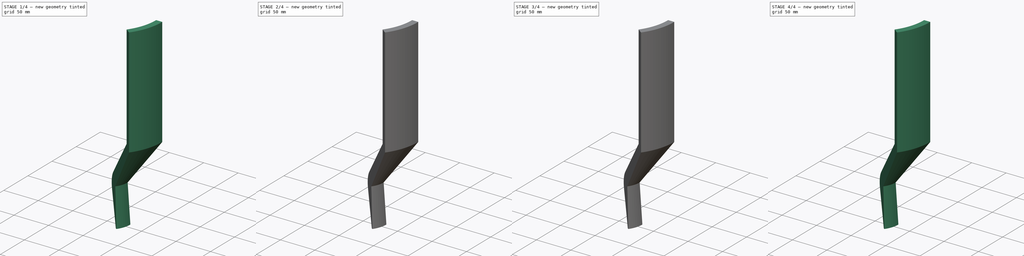
[diagram: build sequence overview — one tinted view per stage of 4, left to right]
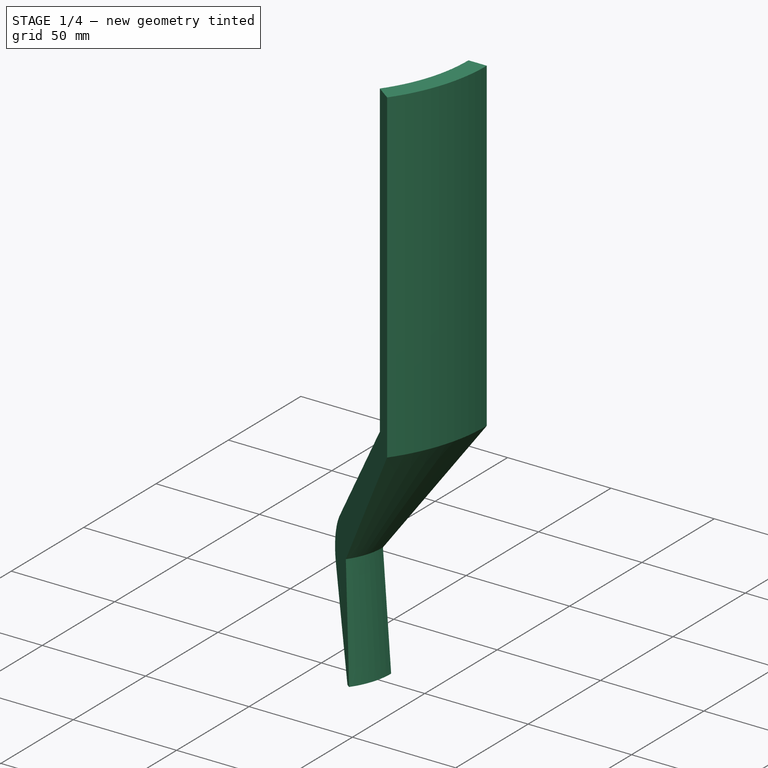
[diagram: stage 1 of 4 — iso view after this stage's code; geometry added in this stage tinted green]
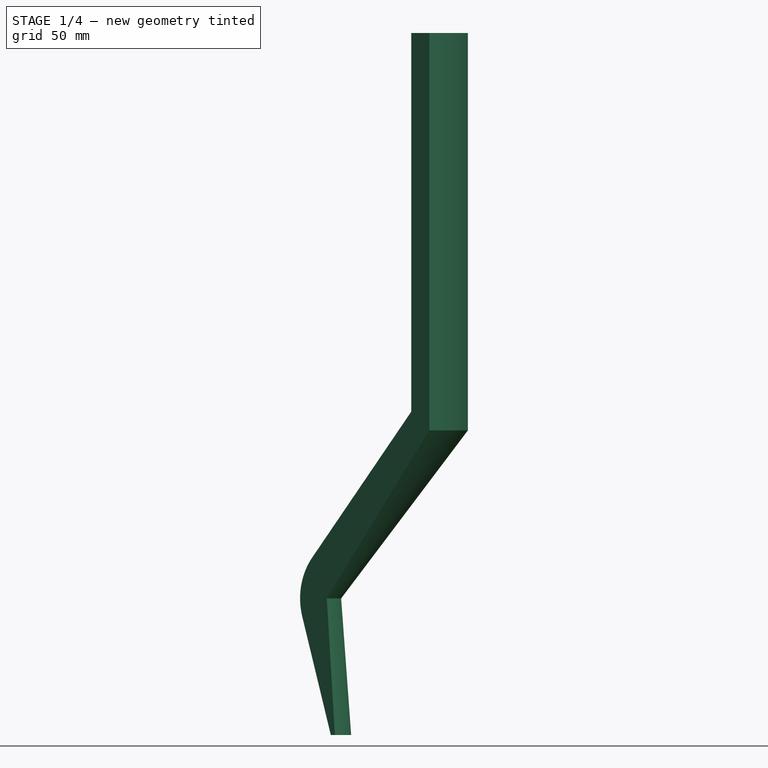
[diagram: stage 1 of 4 — front view after this stage's code; geometry added in this stage tinted green]
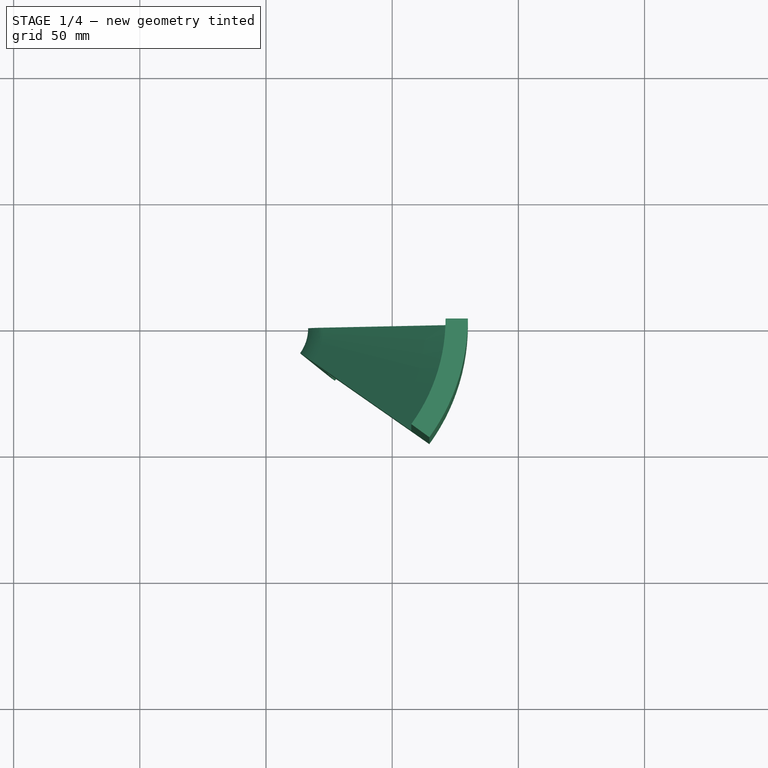
[diagram: stage 1 of 4 — top view after this stage's code; geometry added in this stage tinted green]
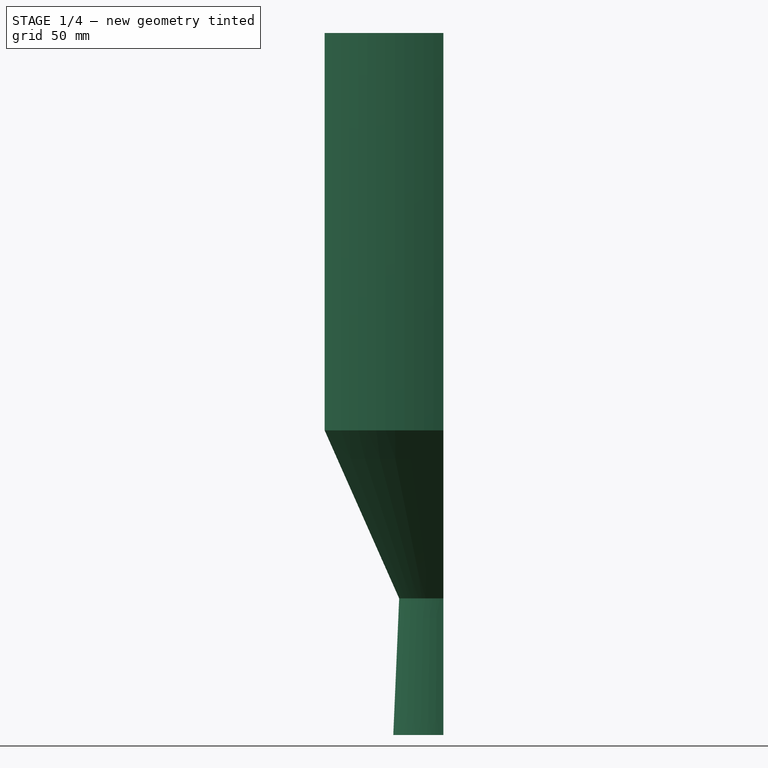
[diagram: stage 1 of 4 — right view after this stage's code; geometry added in this stage tinted green]
FCSTD DOCUMENT  (FreeCAD 1.0R39109 (Git))
Label: mlaznicaV3-CFD
License: All rights reserved
LicenseURL: https://en.wikipedia.org/wiki/All_rights_reserved
objects: Sketcher::SketchObject×9, Part::FeaturePython×9, PartDesign::Groove×6, PartDesign::Plane×4, PartDesign::Revolution×3, PartDesign::Body×3, Spreadsheet::Sheet×1, PartDesign::Boolean×1
note: 63 computed .brp shape members not serialized (recipe doc carries the construction recipe); baked Part::Feature solids carry a one-line shape summary decoded from their .brp

FEATURE [PartDesign::Body] Body  label="volume-solid"
  AllowCompound = false
  Group = -> [Sketch,Revolution,DatumPlane,Sketch001,Groove,DatumPlane001,Sketch002,Groove001,Sketch004,Groove002]
  Origin = -> Origin
  Tip = -> Groove002
FEATURE [PartDesign::Plane] DatumPlane002
  AttachmentOffset = pos=(0,0,0) rot=(0,-1,0;0.055866rad)
  AttachmentSupport = -> [XZ_Plane001]
  Length = 62.9816
  MapMode = 5
  Placement = pos=(0,0,0) rot=(0.99922,-0.027918,-0.027918;1.57158rad)
  ResizeMode = 0
  Width = 60.2678
  expr: .AttachmentOffset.Rotation.Pitch = -Spreadsheet.C15 / 2
FEATURE [PartDesign::Plane] DatumPlane003
  AttachmentOffset = pos=(0,0,0) rot=(0,-1,0;0.370025rad)
  AttachmentSupport = -> [XZ_Plane001]
  Length = 76.0731
  MapMode = 5
  Placement = pos=(0,0,0) rot=(0.966713,-0.180923,-0.180923;1.60464rad)
  ResizeMode = 0
  Width = 61.3752
  expr: .AttachmentOffset.Rotation.Pitch = -(Spreadsheet.C15 / 2 + Spreadsheet.C15 + Spreadsheet.C16)
FEATURE [Sketcher::SketchObject] Sketch005
  ArcFitTolerance = 1e-06
  AttachmentSupport = -> [XZ_Plane001]
  FullyConstrained = true
  MakeInternals = false
  MapMode = 5
  Placement = pos=(0,0,0) rot=(1,0,0;1.5708rad)
  expr: Constraints[18] = Spreadsheet.vanjski_promjer
  expr: Constraints[1] = Spreadsheet.promjer_grla_mlaznice
  expr: Constraints[22] = Spreadsheet.vanjski_promjer_grlo
  expr: Constraints[6] = Spreadsheet.unutarnji_promjer_komora
  sketch-geometry (10):
    g0: ArcOfCircle CenterX=41.7 CenterY=54.12 CenterZ=0 NormalX=0 NormalY=0 NormalZ=1 AngleXU=0 Radius=25 StartAngle=2.44346 EndAngle=3.43132
    g1: LineSegment StartX=17.7419 StartY=46.9778 StartZ=0 EndX=31.7466 EndY=0 EndZ=0
    g2: LineSegment StartX=22.5489 StartY=70.1897 StartZ=0 EndX=71.1527 EndY=128.114 EndZ=0
    g3: LineSegment StartX=71.1527 StartY=128.114 StartZ=0 EndX=71.1527 EndY=278.114 EndZ=0
    g4: LineSegment StartX=71.1527 StartY=278.114 StartZ=0 EndX=80 EndY=278.114 EndZ=0
    g5: LineSegment StartX=80 StartY=278.114 StartZ=0 EndX=80 EndY=120.69 EndZ=0
    g6: LineSegment [constr] StartX=71.1527 StartY=128.114 StartZ=0 EndX=80 EndY=120.69 EndZ=0
    g7: LineSegment StartX=80 StartY=120.69 StartZ=0 EndX=29.7795 EndY=54.12 EndZ=0
    g8: LineSegment StartX=29.7795 StartY=54.12 StartZ=0 EndX=33.7466 EndY=0 EndZ=0
    g9: LineSegment StartX=33.7466 StartY=0 StartZ=0 EndX=31.7466 EndY=0 EndZ=0
  constraints (28):
    c: Diameter(g0) = 50
    c: Distance(g0,g-2) = 16.7
    c: Distance(g0,g-1) = 54.12
    c: Angle(g-2,g1) = 0.289725
    c: PointOnObject(g1,g-1)
    c: Angle(g2,g-2) = 0.698132
    c: DistanceX(g-1,g2) = 71.1527
    c: Tangent(g0,g1) = -1.5708
    c: Tangent(g0,g2) = 1.5708
    c: Coincident(g3,g2)
    c: Vertical(g3)
    c: Coincident(g4,g3)
    c: Horizontal(g4)
    c: Coincident(g5,g4)
    c: Vertical(g5)
    c: DistanceY(g3,g3) = 150
    c: Coincident(g6,g2)
    c: Perpendicular(g6,g2)
    c: Distance(g-2,g5) = 80
    c: Coincident(g5,g6)
    c: Coincident(g7,g5)
    c: Distance(g7,g-1) = 54.12
    c: DistanceX(g-1,g7) = 29.7795
    c: Coincident(g8,g7)
    c: PointOnObject(g8,g-1)
    c: Coincident(g9,g8)
    c: Coincident(g9,g1)
    c: DistanceX(g9,g9) = 2
FEATURE [PartDesign::Revolution] Revolution001
  Angle = 36
  Angle2 = 60
  Axis = (0,2e-16,1)
  Base = (0,0,0)
  Placement = pos=(0,0,0) rot=(1,0,0;1.5708rad)
  Profile = -> Sketch005
  ReferenceAxis = -> Sketch005 [V_Axis]
  Refine = true
  Reversed = true
  Suppressed = false
  Type = 0
  expr: Angle = Spreadsheet.deg_grlo
FEATURE [PartDesign::Body] Body001
  AllowCompound = false
  Group = -> [Sketch005,Revolution001,DatumPlane002,Sketch006,Groove003,DatumPlane003,Sketch007,Groove004,Sketch008,Groove005]
  Origin = -> Origin001
  Tip = -> Groove005
FEATURE [Sketcher::SketchObject] Sketch009
  ArcFitTolerance = 1e-06
  AttachmentSupport = -> [XZ_Plane002]
  FullyConstrained = true
  MakeInternals = false
  MapMode = 5
  Placement = pos=(0,0,0) rot=(1,0,0;1.5708rad)
  expr: Constraints[18] = Spreadsheet.vanjski_promjer
  expr: Constraints[1] = Spreadsheet.promjer_grla_mlaznice
  expr: Constraints[22] = Spreadsheet.vanjski_promjer_grlo
  expr: Constraints[6] = Spreadsheet.unutarnji_promjer_komora
  sketch-geometry (10):
    g0: ArcOfCircle CenterX=41.7 CenterY=54.12 CenterZ=0 NormalX=0 NormalY=0 NormalZ=1 AngleXU=0 Radius=25 StartAngle=2.44346 EndAngle=3.43132
    g1: LineSegment StartX=17.7419 StartY=46.9778 StartZ=0 EndX=31.7466 EndY=0 EndZ=0
    g2: LineSegment StartX=22.5489 StartY=70.1897 StartZ=0 EndX=71.1527 EndY=128.114 EndZ=0
    g3: LineSegment StartX=71.1527 StartY=128.114 StartZ=0 EndX=71.1527 EndY=278.114 EndZ=0
    g4: LineSegment StartX=71.1527 StartY=278.114 StartZ=0 EndX=80 EndY=278.114 EndZ=0
    g5: LineSegment StartX=80 StartY=278.114 StartZ=0 EndX=80 EndY=120.69 EndZ=0
    g6: LineSegment [constr] StartX=71.1527 StartY=128.114 StartZ=0 EndX=80 EndY=120.69 EndZ=0
    g7: LineSegment StartX=80 StartY=120.69 StartZ=0 EndX=29.7795 EndY=54.12 EndZ=0
    g8: LineSegment StartX=29.7795 StartY=54.12 StartZ=0 EndX=33.7466 EndY=0 EndZ=0
    g9: LineSegment StartX=33.7466 StartY=0 StartZ=0 EndX=31.7466 EndY=0 EndZ=0
  constraints (28):
    c: Diameter(g0) = 50
    c: Distance(g0,g-2) = 16.7
    c: Distance(g0,g-1) = 54.12
    c: Angle(g-2,g1) = 0.289725
    c: PointOnObject(g1,g-1)
    c: Angle(g2,g-2) = 0.698132
    c: DistanceX(g-1,g2) = 71.1527
    c: Tangent(g0,g1) = -1.5708
    c: Tangent(g0,g2) = 1.5708
    c: Coincident(g3,g2)
    c: Vertical(g3)
    c: Coincident(g4,g3)
    c: Horizontal(g4)
    c: Coincident(g5,g4)
    c: Vertical(g5)
    c: DistanceY(g3,g3) = 150
    c: Coincident(g6,g2)
    c: Perpendicular(g6,g2)
    c: Distance(g-2,g5) = 80
    c: Coincident(g5,g6)
    c: Coincident(g7,g5)
    c: Distance(g7,g-1) = 54.12
    c: DistanceX(g-1,g7) = 29.7795
    c: Coincident(g8,g7)
    c: PointOnObject(g8,g-1)
    c: Coincident(g9,g8)
    c: Coincident(g9,g1)
    c: DistanceX(g9,g9) = 2
FEATURE [PartDesign::Revolution] Revolution002
  Angle = 36
  Angle2 = 60
  Axis = (0,2e-16,1)
  Base = (0,0,0)
  Placement = pos=(0,0,0) rot=(1,0,0;1.5708rad)
  Profile = -> Sketch009
  ReferenceAxis = -> Sketch009 [V_Axis]
  Refine = true
  Reversed = true
  Suppressed = false
  Type = 0
  expr: Angle = Spreadsheet.deg_grlo
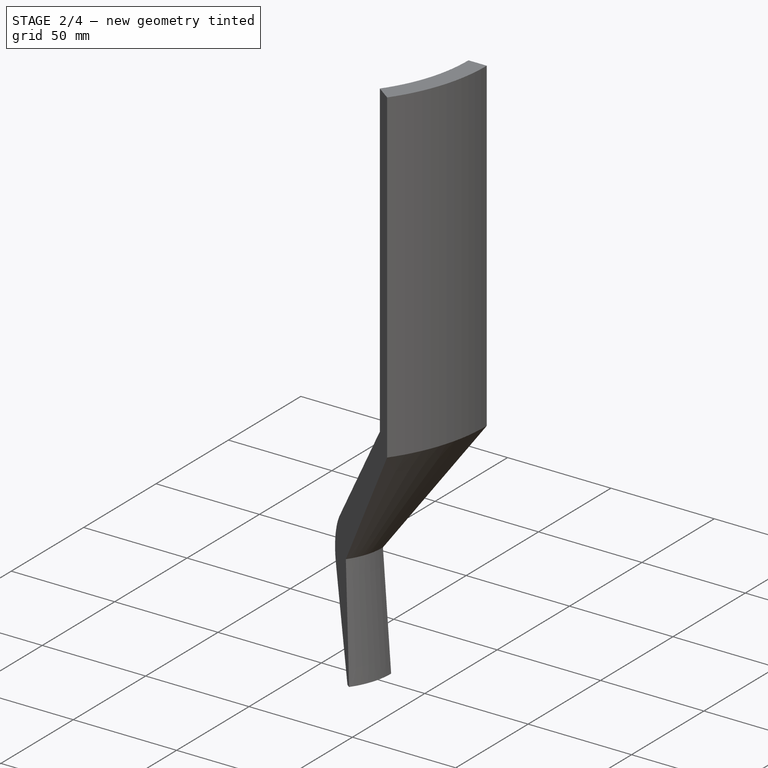
[diagram: stage 2 of 4 — iso view after this stage's code; geometry added in this stage tinted green]
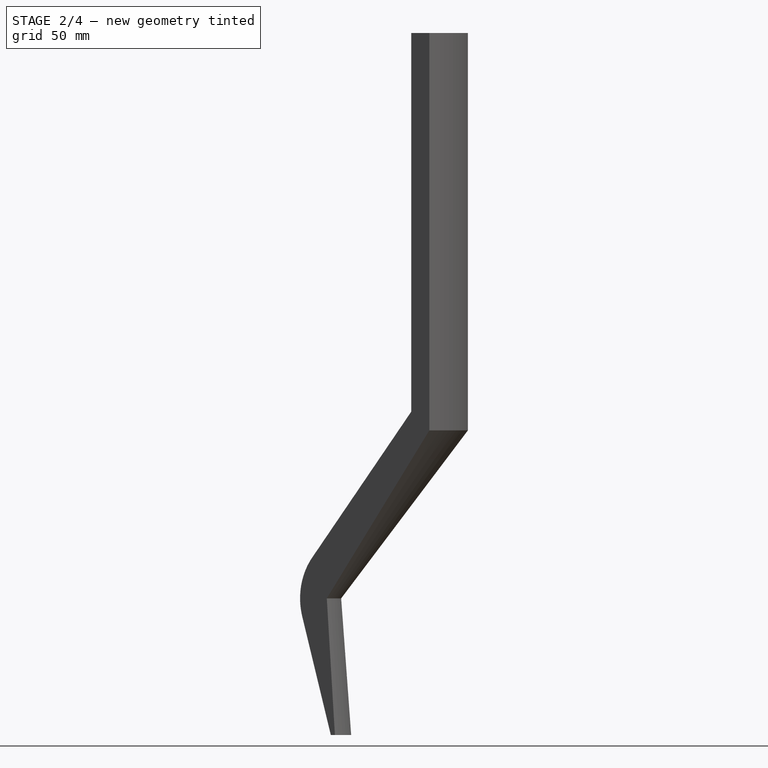
[diagram: stage 2 of 4 — front view after this stage's code; geometry added in this stage tinted green]
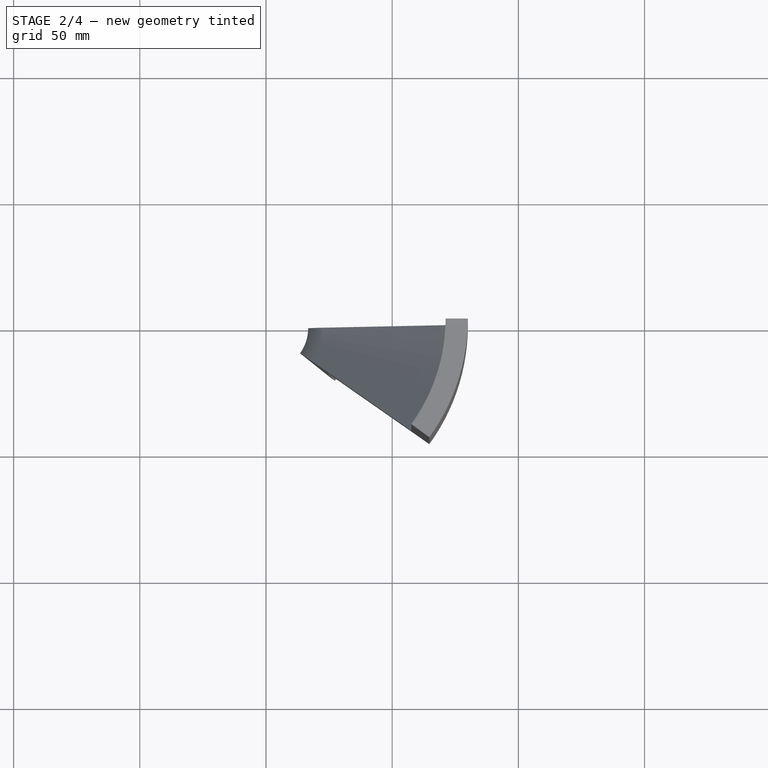
[diagram: stage 2 of 4 — top view after this stage's code; geometry added in this stage tinted green]
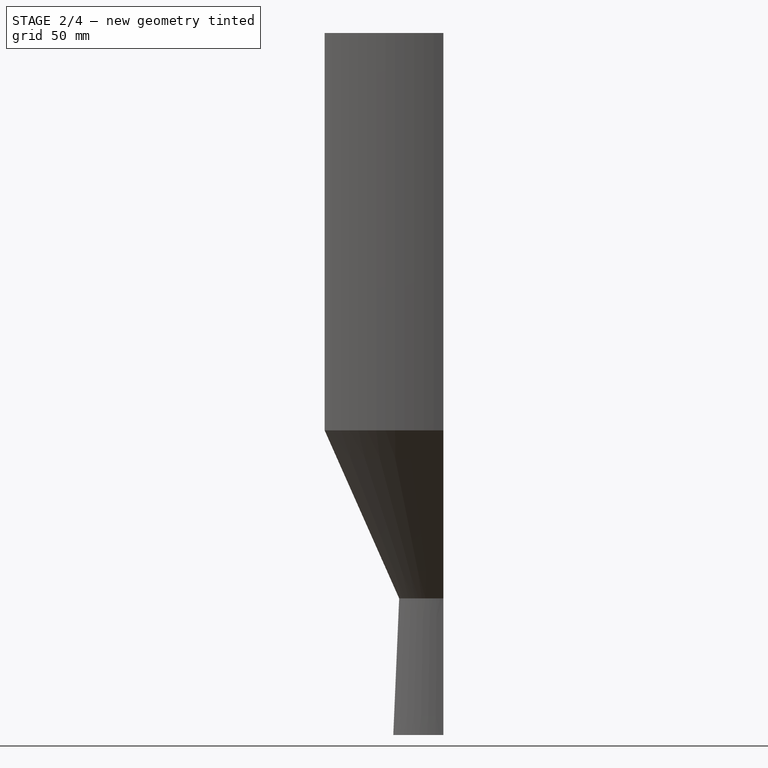
[diagram: stage 2 of 4 — right view after this stage's code; geometry added in this stage tinted green]
FEATURE [Sketcher::SketchObject] Sketch006
  ArcFitTolerance = 1e-06
  AttachmentSupport = -> [DatumPlane002]
  FullyConstrained = false
  MakeInternals = false
  MapMode = 5
  Placement = pos=(0,0,0) rot=(0.99922,-0.027918,-0.027918;1.57158rad)
  expr: Constraints[16] = Spreadsheet.C11
  expr: Constraints[21] = Spreadsheet.C10
  expr: Constraints[24] = Spreadsheet.unutarnji_promjer_komora
  expr: Constraints[7] = Spreadsheet.C4
  expr: Constraints[8] = Spreadsheet.C3
  expr: Constraints[9] = 50 - 2 * (Spreadsheet.C10 - Spreadsheet.C9)
  sketch-geometry (11):
    g0: LineSegment StartX=76.3 StartY=333 StartZ=0 EndX=76.3 EndY=123.181 EndZ=0
    g1: LineSegment StartX=76.3 StartY=333 StartZ=0 EndX=73.0527 EndY=333 EndZ=0
    g2: LineSegment StartX=73.0527 StartY=333 StartZ=0 EndX=73.0527 EndY=126.026 EndZ=0
    g3: ArcOfCircle CenterX=41.7 CenterY=54.12 CenterZ=0 NormalX=0 NormalY=0 NormalZ=1 AngleXU=0 Radius=23.8 StartAngle=2.42216 EndAngle=3.14159
    g4: LineSegment StartX=76.3 StartY=123.181 StartZ=0 EndX=28.3795 EndY=54.12 EndZ=0
    g5: LineSegment StartX=73.0527 StartY=126.026 StartZ=0 EndX=23.7981 EndY=69.8032 EndZ=0
    g6: LineSegment [constr] StartX=73.0527 StartY=126.026 StartZ=0 EndX=76.3 EndY=123.181 EndZ=0
    g7: LineSegment StartX=28.3795 StartY=54.12 StartZ=0 EndX=17.9 EndY=54.12 EndZ=0
    g8: LineSegment [constr] StartX=71.1527 StartY=277.62 StartZ=0 EndX=71.1527 EndY=127.62 EndZ=0
    g9: LineSegment [constr] StartX=71.1527 StartY=127.62 StartZ=0 EndX=47.4397 EndY=99.3599 EndZ=0
    g10: LineSegment [constr] StartX=71.1527 StartY=127.62 StartZ=0 EndX=80.0102 EndY=120.188 EndZ=0
  constraints (32):
    c: Vertical(g0)
    c: Coincident(g1,g0)
    c: Horizontal(g1)
    c: Coincident(g2,g1)
    c: Vertical(g2)
    c: Coincident(g4,g0)
    c: Coincident(g5,g2)
    c: Distance(g-2,g2) = 73.0527
    c: Distance(g-2,g0) = 76.3
    c: Diameter(g3) = 47.6
    c: Distance(g3,g-1) = 54.12
    c: DistanceY(g-1,g4) = 54.12
    c: Coincident(g6,g2)
    c: Perpendicular(g5,g6)
    c: PointOnObject(g0,g6)
    c: PointOnObject(g6,g4)
    c: DistanceX(g-1,g4) = 28.3795
    c: Coincident(g7,g4)
    c: Horizontal(g7)
    c: Tangent(g3,g5) = -1.5708
    c: Coincident(g3,g7)
    c: Distance(g3,g-2) = 17.9
    c: Vertical(g8)
    c: DistanceY(g-1,g8) = 277.62
    c: Distance(g-2,g8) = 71.1527
    c: DistanceY(g8,g8) = 150
    c: Coincident(g9,g8)
    c: Angle(g9,g-2) = 0.698132
    c: Coincident(g10,g8)
    c: Perpendicular(g9,g10)
    c: PointOnObject(g2,g10)
    c: Distance(g-1,g1) = 333
FEATURE [PartDesign::Groove] Groove003
  Angle = 11.5982
  Angle2 = 60
  Axis = (0,1e-16,1)
  Base = (0,0,0)
  BaseFeature = -> Revolution001
  Placement = pos=(0,0,0) rot=(1,0,0;1.5708rad)
  Profile = -> Sketch006
  ReferenceAxis = -> Sketch006 [V_Axis]
  Refine = true
  Reversed = true
  Suppressed = false
  Type = 0
  expr: Angle = Spreadsheet.C16
FEATURE [Sketcher::SketchObject] Sketch007
  ArcFitTolerance = 1e-06
  AttachmentSupport = -> [DatumPlane003]
  FullyConstrained = false
  MakeInternals = false
  MapMode = 5
  Placement = pos=(0,0,0) rot=(0.966713,-0.180923,-0.180923;1.60464rad)
  expr: Constraints[12] = 50 - 2 * (Spreadsheet.C10 - Spreadsheet.C9)
  expr: Constraints[13] = Spreadsheet.C11
  expr: Constraints[14] = Spreadsheet.C4
  expr: Constraints[15] = Spreadsheet.C3
  expr: Constraints[20] = Spreadsheet.C10
  expr: Constraints[22] = Spreadsheet.C5
  expr: Constraints[32] = Spreadsheet.C9
  sketch-geometry (14):
    g0: ArcOfCircle CenterX=41.7 CenterY=54.12 CenterZ=0 NormalX=0 NormalY=0 NormalZ=1 AngleXU=0 Radius=23.8 StartAngle=2.42216 EndAngle=3.14159
    g1: LineSegment StartX=23.7981 StartY=69.8032 StartZ=0 EndX=73.0527 EndY=126.026 EndZ=0
    g2: LineSegment StartX=73.0527 StartY=126.026 StartZ=0 EndX=73.0527 EndY=333 EndZ=0
    g3: LineSegment StartX=73.0527 StartY=333 StartZ=0 EndX=76.3 EndY=333 EndZ=0
    g4: LineSegment StartX=76.3 StartY=333 StartZ=0 EndX=76.3 EndY=123.181 EndZ=0
    g5: LineSegment StartX=76.3 StartY=123.181 StartZ=0 EndX=28.3795 EndY=54.12 EndZ=0
    g6: LineSegment [constr] StartX=73.0527 StartY=126.026 StartZ=0 EndX=76.3 EndY=123.181 EndZ=0
    g7: LineSegment StartX=28.3795 StartY=54.12 StartZ=0 EndX=17.9 EndY=54.12 EndZ=0
    g8: LineSegment [constr] StartX=71.1527 StartY=277.62 StartZ=0 EndX=71.1527 EndY=127.62 EndZ=0
    g9: LineSegment [constr] StartX=71.1527 StartY=127.62 StartZ=0 EndX=54.334 EndY=107.576 EndZ=0
    g10: LineSegment [constr] StartX=71.1527 StartY=127.62 StartZ=0 EndX=86.3761 EndY=114.846 EndZ=0
    g11: ArcOfCircle [constr] CenterX=41.7 CenterY=54.12 CenterZ=0 NormalX=0 NormalY=0 NormalZ=1 AngleXU=0 Radius=25 StartAngle=2.42216 EndAngle=8.39425
    g12: LineSegment [constr] StartX=23.7981 StartY=69.8032 StartZ=0 EndX=22.8955 EndY=70.594 EndZ=0
    g13: LineSegment [constr] StartX=17.9 StartY=54.12 StartZ=0 EndX=16.7 EndY=54.12 EndZ=0
  constraints (41):
    c: Coincident(g2,g1)
    c: Vertical(g2)
    c: Coincident(g3,g2)
    c: Horizontal(g3)
    c: Coincident(g4,g3)
    c: Vertical(g4)
    c: Coincident(g5,g4)
    c: Coincident(g6,g1)
    c: Perpendicular(g1,g6)
    c: Coincident(g6,g4)
    c: DistanceY(g-1,g0) = 54.12
    c: DistanceY(g-1,g5) = 54.12
    c: Diameter(g0) = 47.6
    c: DistanceX(g-1,g5) = 28.3795
    c: Distance(g-2,g2) = 73.0527
    c: Distance(g-2,g4) = 76.3
    c: Coincident(g7,g5)
    c: Horizontal(g7)
    c: Coincident(g0,g7)
    c: Tangent(g0,g1) = 1.5708
    c: Distance(g0,g-2) = 17.9
    c: Vertical(g8)
    c: Distance(g-2,g8) = 71.1527
    c: DistanceY(g-1,g8) = 277.62
    c: DistanceY(g8,g8) = 150
    c: Distance(g-1,g3) = 333
    c: Coincident(g9,g8)
    c: Angle(g9,g-2) = 0.698132
    c: Coincident(g10,g8)
    c: Perpendicular(g10,g9)
    c: PointOnObject(g1,g10)
    c: DistanceY(g-1,g11) = 54.12
    c: Distance(g11,g-2) = 16.7
    c: Diameter(g11) = 50
    c: Coincident(g12,g0)
    c: Perpendicular(g12,g1)
    c: PointOnObject(g11,g1)
    c: Coincident(g12,g11)
    c: Coincident(g13,g0)
    c: Horizontal(g13)
    c: PointOnObject(g13,g11)
FEATURE [PartDesign::Groove] Groove004
  Angle = 11.5982
  Angle2 = 60
  Axis = (0,2e-16,1)
  Base = (0,0,0)
  BaseFeature = -> Groove003
  Placement = pos=(0,0,0) rot=(1,0,0;1.5708rad)
  Profile = -> Sketch007
  ReferenceAxis = -> Sketch007 [V_Axis]
  Refine = true
  Reversed = true
  Suppressed = false
  Type = 0
  expr: Angle = Spreadsheet.C17
FEATURE [Sketcher::SketchObject] Sketch008
  ArcFitTolerance = 1e-06
  AttachmentSupport = -> [DatumPlane003]
  FullyConstrained = false
  MakeInternals = false
  MapMode = 5
  Placement = pos=(0,0,0) rot=(0.966713,-0.180923,-0.180923;1.60464rad)
  expr: Constraints[0] = 50 - 2 * (Spreadsheet.C10 - Spreadsheet.C9)
  expr: Constraints[12] = Spreadsheet.C3
  expr: Constraints[13] = Spreadsheet.C10
  expr: Constraints[21] = Spreadsheet.C3
  expr: Constraints[22] = Spreadsheet.C4
  expr: Constraints[28] = Spreadsheet.C19
  expr: Constraints[3] = Spreadsheet.C11
  expr: Constraints[9] = Spreadsheet.C5
  sketch-geometry (9):
    g0: ArcOfCircle CenterX=41.7 CenterY=54.12 CenterZ=0 NormalX=0 NormalY=0 NormalZ=1 AngleXU=0 Radius=23.8 StartAngle=2.99344 EndAngle=3.14159
    g1: LineSegment StartX=28.3795 StartY=54.12 StartZ=0 EndX=30.813 EndY=57.6331 EndZ=0
    g2: LineSegment [constr] StartX=71.1527 StartY=277.62 StartZ=0 EndX=71.1527 EndY=127.62 EndZ=0
    g3: LineSegment [constr] StartX=71.1527 StartY=127.62 StartZ=0 EndX=52.814 EndY=105.765 EndZ=0
    g4: LineSegment [constr] StartX=71.1527 StartY=127.62 StartZ=0 EndX=76.3 EndY=123.301 EndZ=0
    g5: LineSegment StartX=28.3795 StartY=54.12 StartZ=0 EndX=17.9 EndY=54.12 EndZ=0
    g6: LineSegment [constr] StartX=14.9869 StartY=59.7455 StartZ=0 EndX=73.0527 EndY=126.026 EndZ=0
    g7: LineSegment [constr] StartX=76.3 StartY=123.301 StartZ=0 EndX=28.3795 EndY=54.12 EndZ=0
    g8: LineSegment StartX=18.1607 StartY=57.6331 StartZ=0 EndX=30.813 EndY=57.6331 EndZ=0
  constraints (29):
    c: Diameter(g0) = 47.6
    c: DistanceY(g-1,g0) = 54.12
    c: DistanceY(g-1,g1) = 54.12
    c: Distance(g1,g-2) = 28.3795
    c: Vertical(g2)
    c: Coincident(g3,g2)
    c: DistanceY(g-1,g2) = 277.62
    c: DistanceY(g2,g2) = 150
    c: Angle(g3,g-2) = 0.698132
    c: Distance(g-2,g2) = 71.1527
    c: Coincident(g4,g2)
    c: Perpendicular(g3,g4)
    c: Distance(g4,g-2) = 76.3
    c: Distance(g0,g-2) = 17.9
    c: Coincident(g5,g1)
    c: Coincident(g5,g0)
    c: Horizontal(g5)
    c: Distance(g3,g3) = 28.53
    c: PointOnObject(g6,g4)
    c: PointOnObject(g7,g4)
    c: Coincident(g7,g1)
    c: DistanceX(g-1,g7) = 76.3
    c: DistanceX(g-1,g6) = 73.0527
    c: Tangent(g0,g6)
    c: Parallel(g7,g1)
    c: Horizontal(g8)
    c: Coincident(g8,g1)
    c: Coincident(g8,g0)
    c: Distance(g5,g8) = 3.51309
FEATURE [PartDesign::Groove] Groove005
  Angle = 6.40176
  Angle2 = 60
  Axis = (0,2e-16,1)
  Base = (0,0,0)
  BaseFeature = -> Groove004
  Placement = pos=(0,0,0) rot=(1,0,0;1.5708rad)
  Profile = -> Sketch008
  ReferenceAxis = -> Sketch008 [V_Axis]
  Refine = true
  Suppressed = false
  Type = 0
  expr: Angle = Spreadsheet.C15
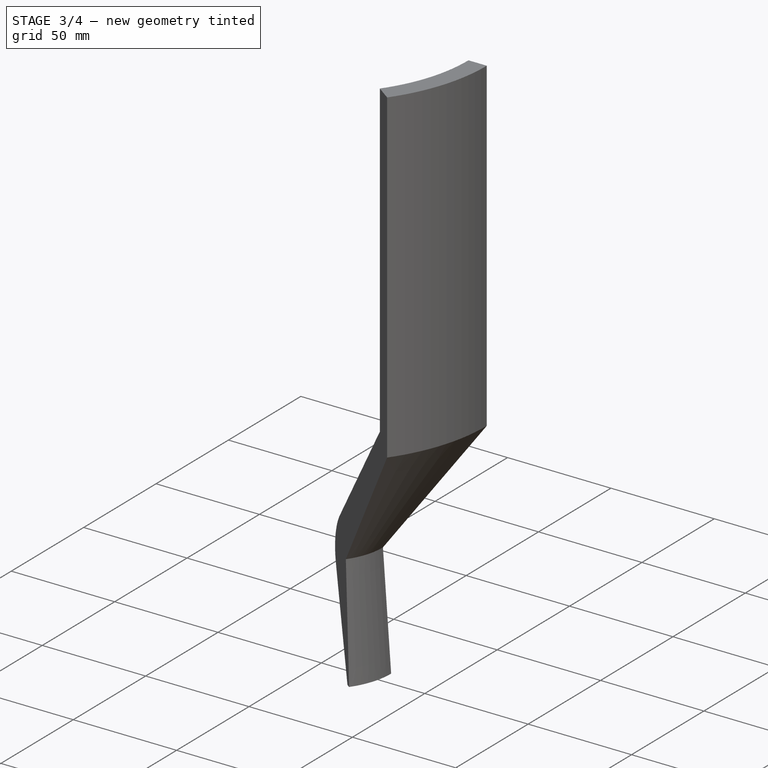
[diagram: stage 3 of 4 — iso view after this stage's code; geometry added in this stage tinted green]
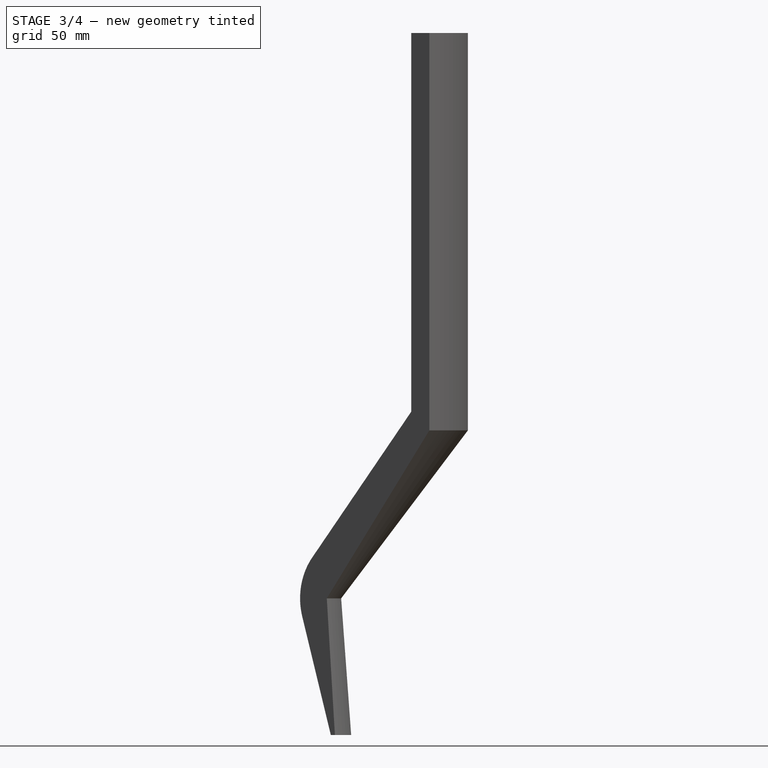
[diagram: stage 3 of 4 — front view after this stage's code; geometry added in this stage tinted green]
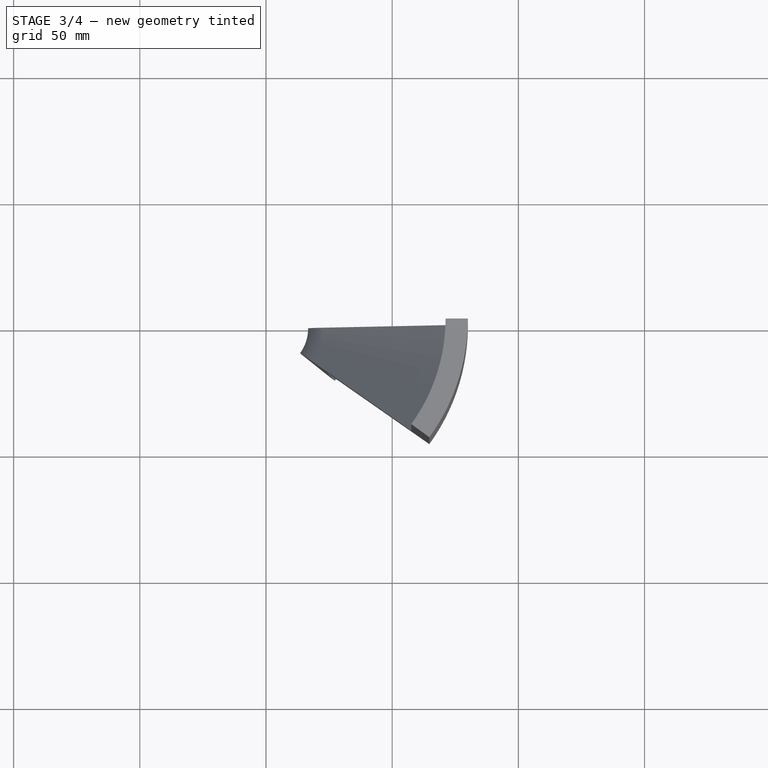
[diagram: stage 3 of 4 — top view after this stage's code; geometry added in this stage tinted green]
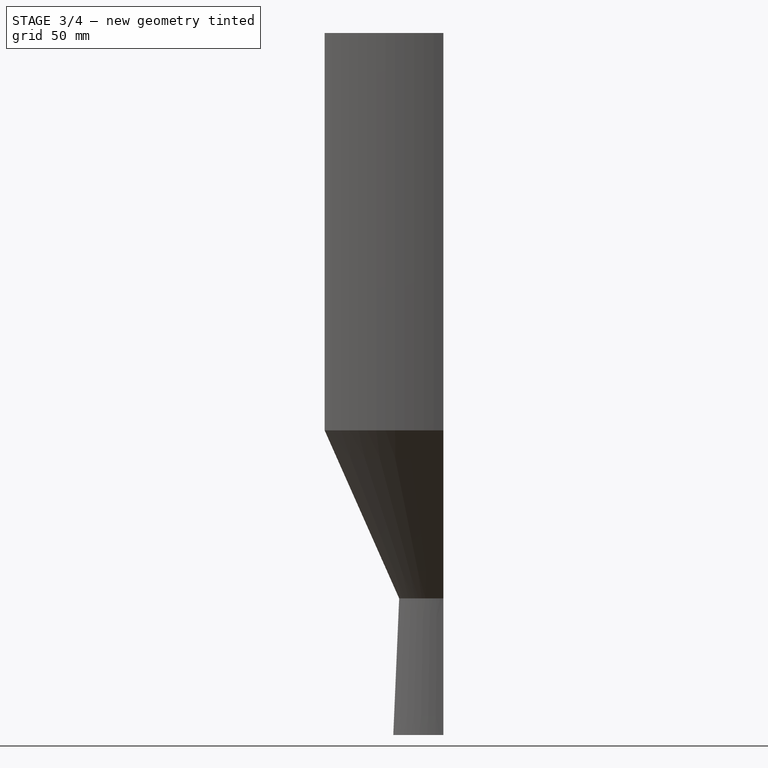
[diagram: stage 3 of 4 — right view after this stage's code; geometry added in this stage tinted green]
FEATURE [Sketcher::SketchObject] Sketch
  ArcFitTolerance = 1e-06
  AttachmentSupport = -> [XZ_Plane]
  FullyConstrained = true
  MakeInternals = false
  MapMode = 5
  Placement = pos=(0,0,0) rot=(1,0,0;1.5708rad)
  expr: Constraints[18] = Spreadsheet.vanjski_promjer
  expr: Constraints[1] = Spreadsheet.promjer_grla_mlaznice
  expr: Constraints[22] = Spreadsheet.vanjski_promjer_grlo
  expr: Constraints[6] = Spreadsheet.unutarnji_promjer_komora
  sketch-geometry (10):
    g0: ArcOfCircle CenterX=41.7 CenterY=54.12 CenterZ=0 NormalX=0 NormalY=0 NormalZ=1 AngleXU=0 Radius=25 StartAngle=2.44346 EndAngle=3.43132
    g1: LineSegment StartX=17.7419 StartY=46.9778 StartZ=0 EndX=31.7466 EndY=0 EndZ=0
    g2: LineSegment StartX=22.5489 StartY=70.1897 StartZ=0 EndX=71.1527 EndY=128.114 EndZ=0
    g3: LineSegment StartX=71.1527 StartY=128.114 StartZ=0 EndX=71.1527 EndY=278.114 EndZ=0
    g4: LineSegment StartX=71.1527 StartY=278.114 StartZ=0 EndX=80 EndY=278.114 EndZ=0
    g5: LineSegment StartX=80 StartY=278.114 StartZ=0 EndX=80 EndY=120.69 EndZ=0
    g6: LineSegment [constr] StartX=71.1527 StartY=128.114 StartZ=0 EndX=80 EndY=120.69 EndZ=0
    g7: LineSegment StartX=80 StartY=120.69 StartZ=0 EndX=29.7795 EndY=54.12 EndZ=0
    g8: LineSegment StartX=29.7795 StartY=54.12 StartZ=0 EndX=33.7466 EndY=0 EndZ=0
    g9: LineSegment StartX=33.7466 StartY=0 StartZ=0 EndX=31.7466 EndY=0 EndZ=0
  constraints (28):
    c: Diameter(g0) = 50
    c: Distance(g0,g-2) = 16.7
    c: Distance(g0,g-1) = 54.12
    c: Angle(g-2,g1) = 0.289725
    c: PointOnObject(g1,g-1)
    c: Angle(g2,g-2) = 0.698132
    c: DistanceX(g-1,g2) = 71.1527
    c: Tangent(g0,g1) = -1.5708
    c: Tangent(g0,g2) = 1.5708
    c: Coincident(g3,g2)
    c: Vertical(g3)
    c: Coincident(g4,g3)
    c: Horizontal(g4)
    c: Coincident(g5,g4)
    c: Vertical(g5)
    c: DistanceY(g3,g3) = 150
    c: Coincident(g6,g2)
    c: Perpendicular(g6,g2)
    c: Distance(g-2,g5) = 80
    c: Coincident(g5,g6)
    c: Coincident(g7,g5)
    c: Distance(g7,g-1) = 54.12
    c: DistanceX(g-1,g7) = 29.7795
    c: Coincident(g8,g7)
    c: PointOnObject(g8,g-1)
    c: Coincident(g9,g8)
    c: Coincident(g9,g1)
    c: DistanceX(g9,g9) = 2
FEATURE [Spreadsheet::Sheet] Spreadsheet
  cells = B1='dizajn komore; A2=160; B2='vanjski_promjer; C2(vanjski_promjer)==A2 / 2; A3=152.6; B3='D_ulaz_mlaznice; C3(D_ulaz_mlaznice)==A3 / 2; A4=146.105475517654; B4='d_ulaz_mlaznice; C4(d_ulaz_mlaznice)==A4 / 2; A5=142.305475517654; B5='unutarnji promjer; C5(unutarnji_promjer_komora)==A5 / 2; B7='dizajn grla; A9=33.4; B9='unutarnji_promjer_grla_mlaznice; C9(promjer_grla_mlaznice)==A9 / 2; A10=35.8; B10='unutarnja_stjenka_rashladnih_kanala; C10(unutarnja_stjenka_rashladnih_kanala)==A10 / 2; A11=56.7590523507938; B11='d_vani_grlo; C11(d_vani_grlo)==A11 / 2; A12=59.5590523507938; B12='vanjski_promjer_grlo; C12(vanjski_promjer_grlo)==A12 / 2; B14='revolve mlaznica (stupnjevi); C14(deg_grlo)=36; B15='revolve zid; C15(fi_alu_stupnjevi_ulaz_mlaznice)=6.40176307408741; B16='revolve izlaz kanal; C16(fi_IPA_ulaz_deg)=11.5982369259126; B17='revolve ulaz kanal; C17(fi_IPA_izlaz_gore_deg)=11.5982369259126; B19='visina za prolaz; C19=3.51309193689389
FEATURE [PartDesign::Revolution] Revolution
  Angle = 36
  Angle2 = 60
  Axis = (0,2e-16,1)
  Base = (0,0,0)
  Placement = pos=(0,0,0) rot=(1,0,0;1.5708rad)
  Profile = -> Sketch
  ReferenceAxis = -> Sketch [V_Axis]
  Refine = true
  Reversed = true
  Suppressed = false
  Type = 0
  expr: Angle = Spreadsheet.deg_grlo
FEATURE [PartDesign::Plane] DatumPlane
  AttachmentOffset = pos=(0,0,0) rot=(0,-1,0;0.055866rad)
  AttachmentSupport = -> [XZ_Plane]
  Length = 145.187
  MapMode = 5
  Placement = pos=(0,0,0) rot=(0.99922,-0.027918,-0.027918;1.57158rad)
  ResizeMode = 0
  Width = 339.443
  expr: .AttachmentOffset.Rotation.Pitch = -Spreadsheet.C15 / 2
FEATURE [Sketcher::SketchObject] Sketch001
  ArcFitTolerance = 1e-06
  AttachmentSupport = -> [DatumPlane]
  FullyConstrained = false
  MakeInternals = false
  MapMode = 5
  Placement = pos=(0,0,0) rot=(0.99922,-0.027918,-0.027918;1.57158rad)
  expr: Constraints[16] = Spreadsheet.C11
  expr: Constraints[21] = Spreadsheet.C10
  expr: Constraints[24] = Spreadsheet.unutarnji_promjer_komora
  expr: Constraints[7] = Spreadsheet.C4
  expr: Constraints[8] = Spreadsheet.C3
  expr: Constraints[9] = 50 - 2 * (Spreadsheet.C10 - Spreadsheet.C9)
  sketch-geometry (11):
    g0: LineSegment StartX=76.3 StartY=333 StartZ=0 EndX=76.3 EndY=123.181 EndZ=0
    g1: LineSegment StartX=76.3 StartY=333 StartZ=0 EndX=73.0527 EndY=333 EndZ=0
    g2: LineSegment StartX=73.0527 StartY=333 StartZ=0 EndX=73.0527 EndY=126.026 EndZ=0
    g3: ArcOfCircle CenterX=41.7 CenterY=54.12 CenterZ=0 NormalX=0 NormalY=0 NormalZ=1 AngleXU=0 Radius=23.8 StartAngle=2.42216 EndAngle=3.14159
    g4: LineSegment StartX=76.3 StartY=123.181 StartZ=0 EndX=28.3795 EndY=54.12 EndZ=0
    g5: LineSegment StartX=73.0527 StartY=126.026 StartZ=0 EndX=23.7981 EndY=69.8032 EndZ=0
    g6: LineSegment [constr] StartX=73.0527 StartY=126.026 StartZ=0 EndX=76.3 EndY=123.181 EndZ=0
    g7: LineSegment StartX=28.3795 StartY=54.12 StartZ=0 EndX=17.9 EndY=54.12 EndZ=0
    g8: LineSegment [constr] StartX=71.1527 StartY=277.62 StartZ=0 EndX=71.1527 EndY=127.62 EndZ=0
    g9: LineSegment [constr] StartX=71.1527 StartY=127.62 StartZ=0 EndX=47.4397 EndY=99.3599 EndZ=0
    g10: LineSegment [constr] StartX=71.1527 StartY=127.62 StartZ=0 EndX=80.0102 EndY=120.188 EndZ=0
  constraints (32):
    c: Vertical(g0)
    c: Coincident(g1,g0)
    c: Horizontal(g1)
    c: Coincident(g2,g1)
    c: Vertical(g2)
    c: Coincident(g4,g0)
    c: Coincident(g5,g2)
    c: Distance(g-2,g2) = 73.0527
    c: Distance(g-2,g0) = 76.3
    c: Diameter(g3) = 47.6
    c: Distance(g3,g-1) = 54.12
    c: DistanceY(g-1,g4) = 54.12
    c: Coincident(g6,g2)
    c: Perpendicular(g5,g6)
    c: PointOnObject(g0,g6)
    c: PointOnObject(g6,g4)
    c: DistanceX(g-1,g4) = 28.3795
    c: Coincident(g7,g4)
    c: Horizontal(g7)
    c: Tangent(g3,g5) = -1.5708
    c: Coincident(g3,g7)
    c: Distance(g3,g-2) = 17.9
    c: Vertical(g8)
    c: DistanceY(g-1,g8) = 277.62
    c: Distance(g-2,g8) = 71.1527
    c: DistanceY(g8,g8) = 150
    c: Coincident(g9,g8)
    c: Angle(g9,g-2) = 0.698132
    c: Coincident(g10,g8)
    c: Perpendicular(g9,g10)
    c: PointOnObject(g2,g10)
    c: Distance(g-1,g1) = 333
FEATURE [PartDesign::Groove] Groove
  Angle = 11.5982
  Angle2 = 60
  Axis = (0,1e-16,1)
  Base = (0,0,0)
  BaseFeature = -> Revolution
  Placement = pos=(0,0,0) rot=(1,0,0;1.5708rad)
  Profile = -> Sketch001
  ReferenceAxis = -> Sketch001 [V_Axis]
  Refine = true
  Reversed = true
  Suppressed = false
  Type = 0
  expr: Angle = Spreadsheet.C16
FEATURE [PartDesign::Boolean] Boolean
  BaseFeature = -> Revolution002
  Group = -> [Body001]
  Refine = true
  Suppressed = false
  Type = 1
  UsePlacement = true
FEATURE [PartDesign::Body] Body002  label="volume-fluid"
  AllowCompound = false
  Group = -> [Revolution002,Sketch009,Boolean]
  Origin = -> Origin002
  Tip = -> Boolean
FEATURE [Part::FeaturePython] Facebinder  label="symmetry1"  # WARN: FeaturePython — macro-defined, semantics opaque (R4)
  Area = 2998
  Extrusion = 0
  Faces = -> [Body]
  RemoveSplitter = false
  Sew = false
FEATURE [Part::FeaturePython] Facebinder001  label="symmetry2"  # WARN: FeaturePython — macro-defined, semantics opaque (R4)
  Area = 2998
  Extrusion = 0
  Faces = -> [Body]
  RemoveSplitter = false
  Sew = false
FEATURE [Part::FeaturePython] Facebinder002  label="wall-vani"  # WARN: FeaturePython — macro-defined, semantics opaque (R4)
  Area = 9359.07
  Extrusion = 0
  Faces = -> [Body]
  RemoveSplitter = false
  Sew = false
FEATURE [Part::FeaturePython] Facebinder003  label="wall-vani-ref"  # WARN: FeaturePython — macro-defined, semantics opaque (R4)
  Area = 2875.92
  Extrusion = 0
  Faces = -> [Body]
  RemoveSplitter = false
  Sew = false
FEATURE [Part::FeaturePython] Facebinder004  label="wall-unutra"  # WARN: FeaturePython — macro-defined, semantics opaque (R4)
  Area = 7468.13
  Extrusion = 0
  Faces = -> [Body]
  RemoveSplitter = false
  Sew = false
FEATURE [Part::FeaturePython] Facebinder005  label="wall-unutra-ref"  # WARN: FeaturePython — macro-defined, semantics opaque (R4)
  Area = 2508.33
  Extrusion = 0
  Faces = -> [Body]
  RemoveSplitter = false
  Sew = false
FEATURE [Part::FeaturePython] Facebinder006  label="intersection-wall"  # WARN: FeaturePython — macro-defined, semantics opaque (R4)
  Area = 17940.6
  Extrusion = 0
  Faces = -> [Body002]
  RemoveSplitter = false
  Sew = false
FEATURE [Part::FeaturePython] Facebinder007  label="inlet"  # WARN: FeaturePython — macro-defined, semantics opaque (R4)
  Area = 49.0874
  Extrusion = 0
  Faces = -> [Body002]
  RemoveSplitter = false
  Sew = false
FEATURE [Part::FeaturePython] Facebinder008  label="outlet"  # WARN: FeaturePython — macro-defined, semantics opaque (R4)
  Area = 49.0874
  Extrusion = 0
  Faces = -> [Body002]
  RemoveSplitter = false
  Sew = false
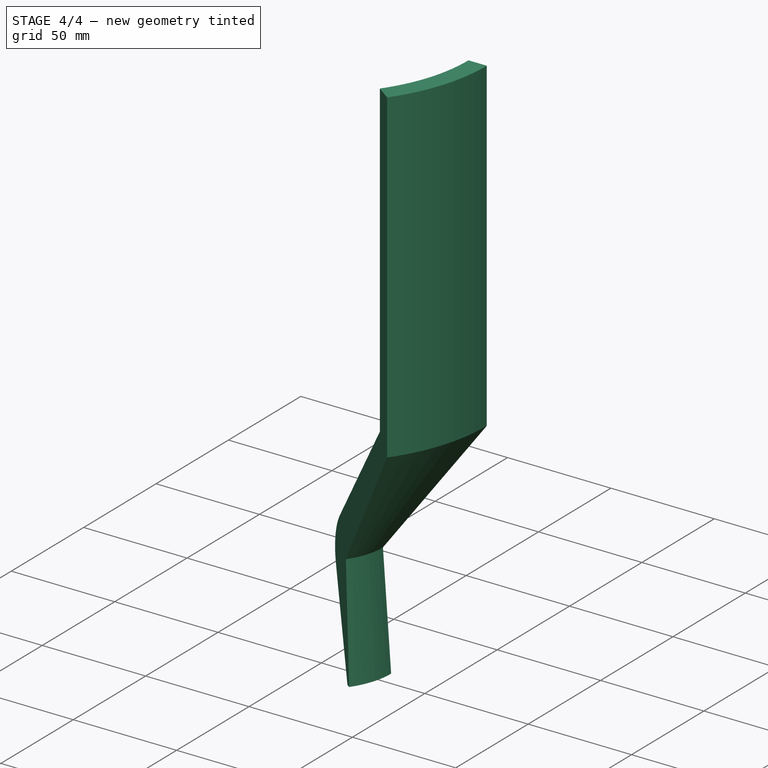
[diagram: stage 4 of 4 — iso view after this stage's code; geometry added in this stage tinted green]
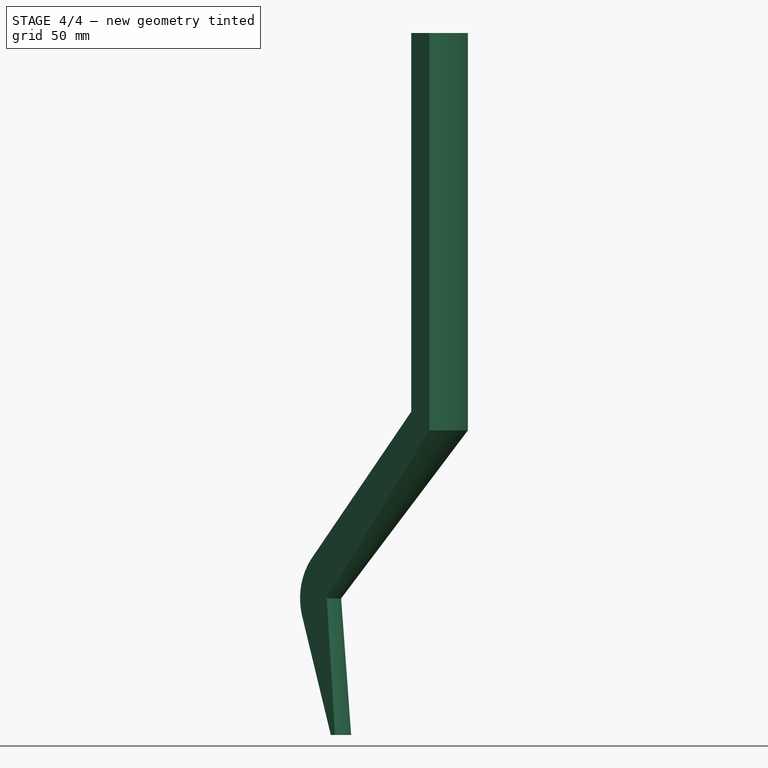
[diagram: stage 4 of 4 — front view after this stage's code; geometry added in this stage tinted green]
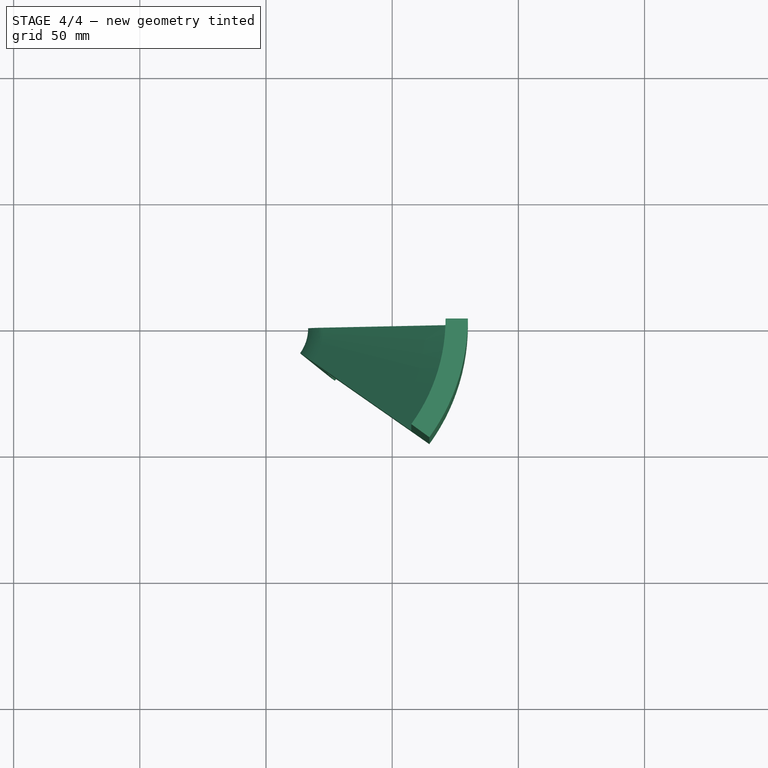
[diagram: stage 4 of 4 — top view after this stage's code; geometry added in this stage tinted green]
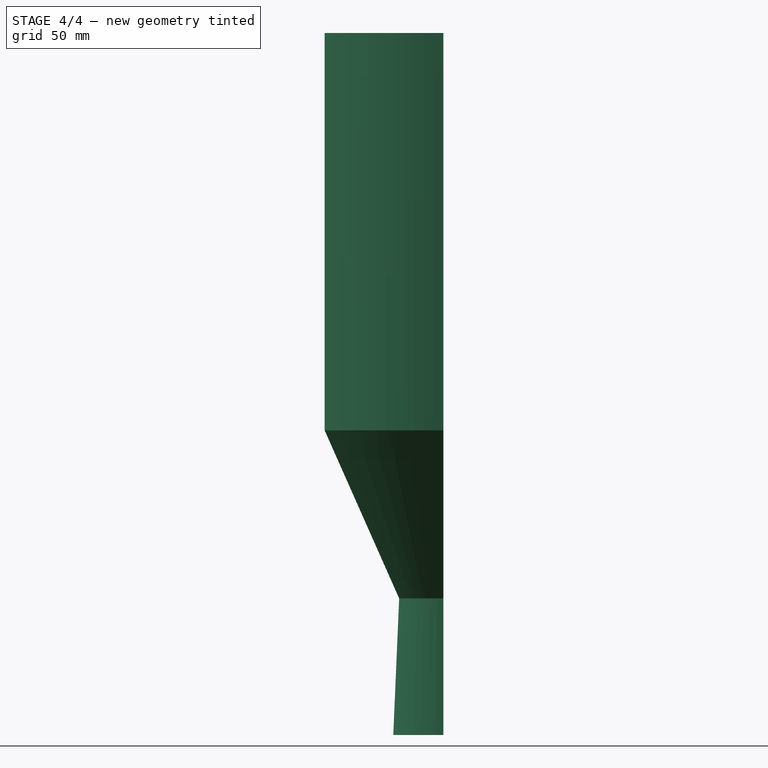
[diagram: stage 4 of 4 — right view after this stage's code; geometry added in this stage tinted green]
FEATURE [PartDesign::Plane] DatumPlane001
  AttachmentOffset = pos=(0,0,0) rot=(0,-1,0;0.370025rad)
  AttachmentSupport = -> [XZ_Plane]
  Length = 162.705
  MapMode = 5
  Placement = pos=(0,0,0) rot=(0.966713,-0.180923,-0.180923;1.60464rad)
  ResizeMode = 0
  Width = 341.878
  expr: .AttachmentOffset.Rotation.Pitch = -(Spreadsheet.C15 + Spreadsheet.C15 / 2 + Spreadsheet.C16)
FEATURE [Sketcher::SketchObject] Sketch002
  ArcFitTolerance = 1e-06
  AttachmentSupport = -> [DatumPlane001]
  FullyConstrained = false
  MakeInternals = false
  MapMode = 5
  Placement = pos=(0,0,0) rot=(0.966713,-0.180923,-0.180923;1.60464rad)
  expr: Constraints[12] = 50 - 2 * (Spreadsheet.C10 - Spreadsheet.C9)
  expr: Constraints[13] = Spreadsheet.C11
  expr: Constraints[14] = Spreadsheet.C4
  expr: Constraints[15] = Spreadsheet.C3
  expr: Constraints[20] = Spreadsheet.C10
  expr: Constraints[22] = Spreadsheet.C5
  expr: Constraints[32] = Spreadsheet.C9
  sketch-geometry (14):
    g0: ArcOfCircle CenterX=41.7 CenterY=54.12 CenterZ=0 NormalX=0 NormalY=0 NormalZ=1 AngleXU=0 Radius=23.8 StartAngle=2.42216 EndAngle=3.14159
    g1: LineSegment StartX=23.7981 StartY=69.8032 StartZ=0 EndX=73.0527 EndY=126.026 EndZ=0
    g2: LineSegment StartX=73.0527 StartY=126.026 StartZ=0 EndX=73.0527 EndY=333 EndZ=0
    g3: LineSegment StartX=73.0527 StartY=333 StartZ=0 EndX=76.3 EndY=333 EndZ=0
    g4: LineSegment StartX=76.3 StartY=333 StartZ=0 EndX=76.3 EndY=123.181 EndZ=0
    g5: LineSegment StartX=76.3 StartY=123.181 StartZ=0 EndX=28.3795 EndY=54.12 EndZ=0
    g6: LineSegment [constr] StartX=73.0527 StartY=126.026 StartZ=0 EndX=76.3 EndY=123.181 EndZ=0
    g7: LineSegment StartX=28.3795 StartY=54.12 StartZ=0 EndX=17.9 EndY=54.12 EndZ=0
    g8: LineSegment [constr] StartX=71.1527 StartY=277.62 StartZ=0 EndX=71.1527 EndY=127.62 EndZ=0
    g9: LineSegment [constr] StartX=71.1527 StartY=127.62 StartZ=0 EndX=54.334 EndY=107.576 EndZ=0
    g10: LineSegment [constr] StartX=71.1527 StartY=127.62 StartZ=0 EndX=86.3761 EndY=114.846 EndZ=0
    g11: ArcOfCircle [constr] CenterX=41.7 CenterY=54.12 CenterZ=0 NormalX=0 NormalY=0 NormalZ=1 AngleXU=0 Radius=25 StartAngle=2.42216 EndAngle=8.39425
    g12: LineSegment [constr] StartX=23.7981 StartY=69.8032 StartZ=0 EndX=22.8955 EndY=70.594 EndZ=0
    g13: LineSegment [constr] StartX=17.9 StartY=54.12 StartZ=0 EndX=16.7 EndY=54.12 EndZ=0
  constraints (41):
    c: Coincident(g2,g1)
    c: Vertical(g2)
    c: Coincident(g3,g2)
    c: Horizontal(g3)
    c: Coincident(g4,g3)
    c: Vertical(g4)
    c: Coincident(g5,g4)
    c: Coincident(g6,g1)
    c: Perpendicular(g1,g6)
    c: Coincident(g6,g4)
    c: DistanceY(g-1,g0) = 54.12
    c: DistanceY(g-1,g5) = 54.12
    c: Diameter(g0) = 47.6
    c: DistanceX(g-1,g5) = 28.3795
    c: Distance(g-2,g2) = 73.0527
    c: Distance(g-2,g4) = 76.3
    c: Coincident(g7,g5)
    c: Horizontal(g7)
    c: Coincident(g0,g7)
    c: Tangent(g0,g1) = 1.5708
    c: Distance(g0,g-2) = 17.9
    c: Vertical(g8)
    c: Distance(g-2,g8) = 71.1527
    c: DistanceY(g-1,g8) = 277.62
    c: DistanceY(g8,g8) = 150
    c: Distance(g-1,g3) = 333
    c: Coincident(g9,g8)
    c: Angle(g9,g-2) = 0.698132
    c: Coincident(g10,g8)
    c: Perpendicular(g10,g9)
    c: PointOnObject(g1,g10)
    c: DistanceY(g-1,g11) = 54.12
    c: Distance(g11,g-2) = 16.7
    c: Diameter(g11) = 50
    c: Coincident(g12,g0)
    c: Perpendicular(g12,g1)
    c: PointOnObject(g11,g1)
    c: Coincident(g12,g11)
    c: Coincident(g13,g0)
    c: Horizontal(g13)
    c: PointOnObject(g13,g11)
FEATURE [PartDesign::Groove] Groove001
  Angle = 11.5982
  Angle2 = 60
  Axis = (0,0,1)
  Base = (0,0,0)
  BaseFeature = -> Groove
  Placement = pos=(0,0,0) rot=(1,0,0;1.5708rad)
  Profile = -> Sketch002
  ReferenceAxis = -> Sketch002 [V_Axis]
  Refine = true
  Reversed = true
  Suppressed = false
  Type = 0
  expr: Angle = Spreadsheet.C17
FEATURE [Sketcher::SketchObject] Sketch004
  ArcFitTolerance = 1e-06
  AttachmentSupport = -> [DatumPlane001]
  FullyConstrained = false
  MakeInternals = false
  MapMode = 5
  Placement = pos=(0,0,0) rot=(0.966713,-0.180923,-0.180923;1.60464rad)
  expr: Constraints[0] = 50 - 2 * (Spreadsheet.C10 - Spreadsheet.C9)
  expr: Constraints[12] = Spreadsheet.C3
  expr: Constraints[13] = Spreadsheet.C10
  expr: Constraints[21] = Spreadsheet.C3
  expr: Constraints[22] = Spreadsheet.C4
  expr: Constraints[28] = Spreadsheet.C19
  expr: Constraints[3] = Spreadsheet.C11
  expr: Constraints[9] = Spreadsheet.C5
  sketch-geometry (9):
    g0: ArcOfCircle CenterX=41.7 CenterY=54.12 CenterZ=0 NormalX=0 NormalY=0 NormalZ=1 AngleXU=0 Radius=23.8 StartAngle=2.99344 EndAngle=3.14159
    g1: LineSegment StartX=28.3795 StartY=54.12 StartZ=0 EndX=30.813 EndY=57.6331 EndZ=0
    g2: LineSegment [constr] StartX=71.1527 StartY=277.62 StartZ=0 EndX=71.1527 EndY=127.62 EndZ=0
    g3: LineSegment [constr] StartX=71.1527 StartY=127.62 StartZ=0 EndX=52.814 EndY=105.765 EndZ=0
    g4: LineSegment [constr] StartX=71.1527 StartY=127.62 StartZ=0 EndX=76.3 EndY=123.301 EndZ=0
    g5: LineSegment StartX=28.3795 StartY=54.12 StartZ=0 EndX=17.9 EndY=54.12 EndZ=0
    g6: LineSegment [constr] StartX=14.9869 StartY=59.7455 StartZ=0 EndX=73.0527 EndY=126.026 EndZ=0
    g7: LineSegment [constr] StartX=76.3 StartY=123.301 StartZ=0 EndX=28.3795 EndY=54.12 EndZ=0
    g8: LineSegment StartX=18.1607 StartY=57.6331 StartZ=0 EndX=30.813 EndY=57.6331 EndZ=0
  constraints (29):
    c: Diameter(g0) = 47.6
    c: DistanceY(g-1,g0) = 54.12
    c: DistanceY(g-1,g1) = 54.12
    c: Distance(g1,g-2) = 28.3795
    c: Vertical(g2)
    c: Coincident(g3,g2)
    c: DistanceY(g-1,g2) = 277.62
    c: DistanceY(g2,g2) = 150
    c: Angle(g3,g-2) = 0.698132
    c: Distance(g-2,g2) = 71.1527
    c: Coincident(g4,g2)
    c: Perpendicular(g3,g4)
    c: Distance(g4,g-2) = 76.3
    c: Distance(g0,g-2) = 17.9
    c: Coincident(g5,g1)
    c: Coincident(g5,g0)
    c: Horizontal(g5)
    c: Distance(g3,g3) = 28.53
    c: PointOnObject(g6,g4)
    c: PointOnObject(g7,g4)
    c: Coincident(g7,g1)
    c: DistanceX(g-1,g7) = 76.3
    c: DistanceX(g-1,g6) = 73.0527
    c: Tangent(g0,g6)
    c: Parallel(g7,g1)
    c: Horizontal(g8)
    c: Coincident(g8,g1)
    c: Coincident(g8,g0)
    c: Distance(g5,g8) = 3.51309
FEATURE [PartDesign::Groove] Groove002
  Angle = 6.40176
  Angle2 = 60
  Axis = (0,0,1)
  Base = (0,0,0)
  BaseFeature = -> Groove001
  Placement = pos=(0,0,0) rot=(1,0,0;1.5708rad)
  Profile = -> Sketch004
  ReferenceAxis = -> Sketch004 [V_Axis]
  Refine = true
  Suppressed = false
  Type = 0
  expr: Angle = Spreadsheet.C15
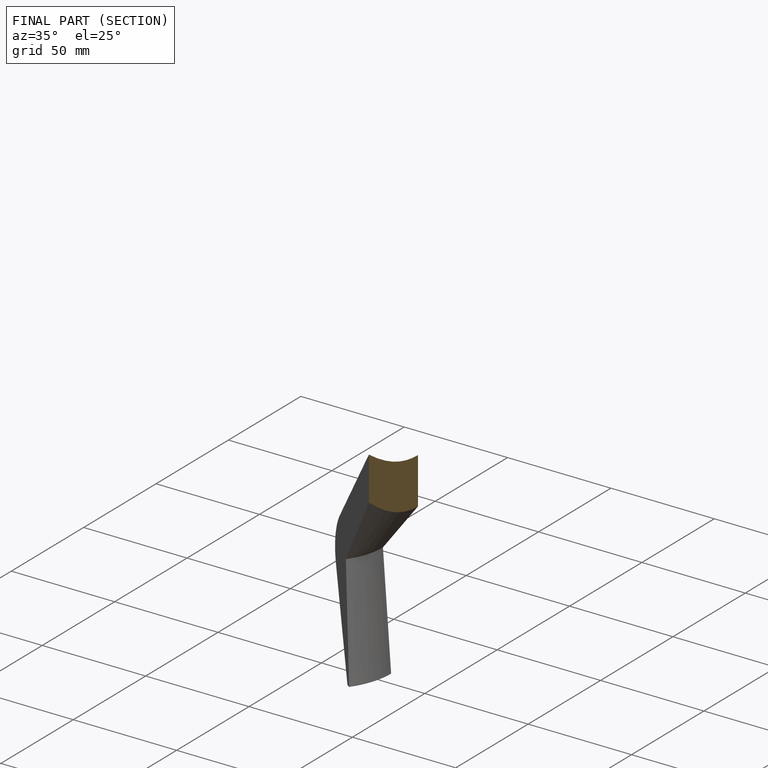
[diagram: finished part — half-section view (interior)]
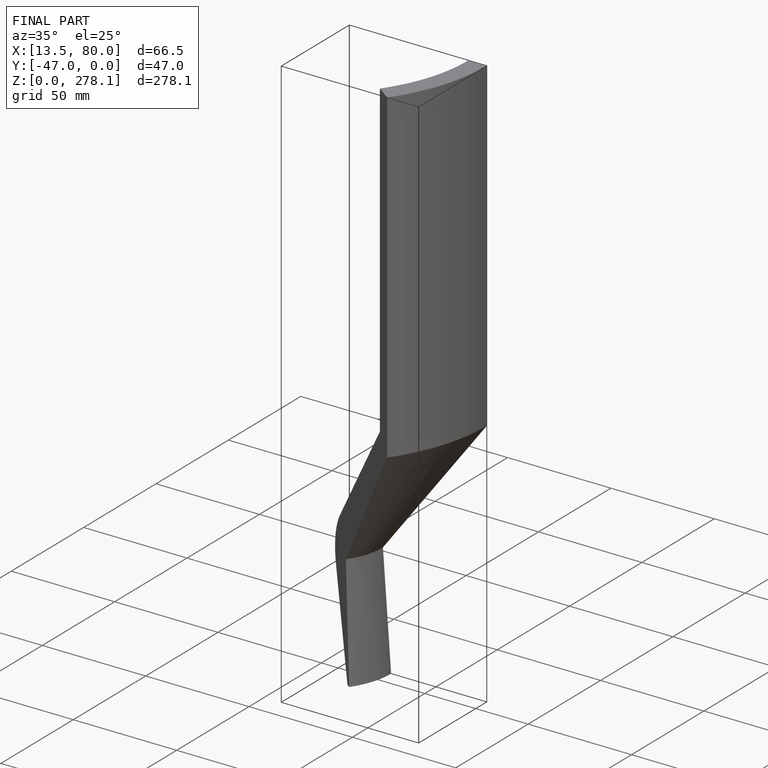
[diagram: finished part — iso view with bounding-box wireframe]
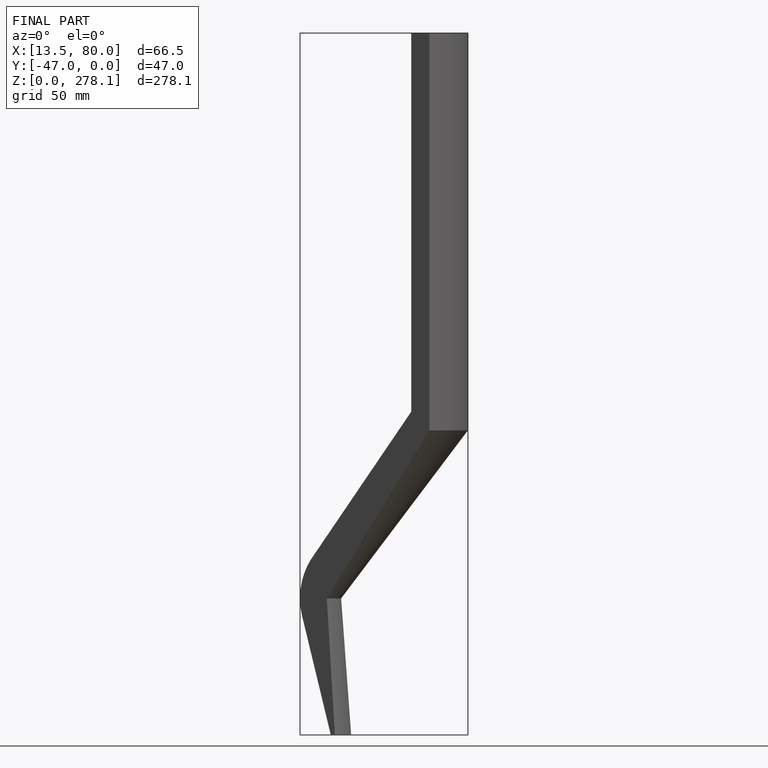
[diagram: finished part — front view with bounding-box wireframe]
